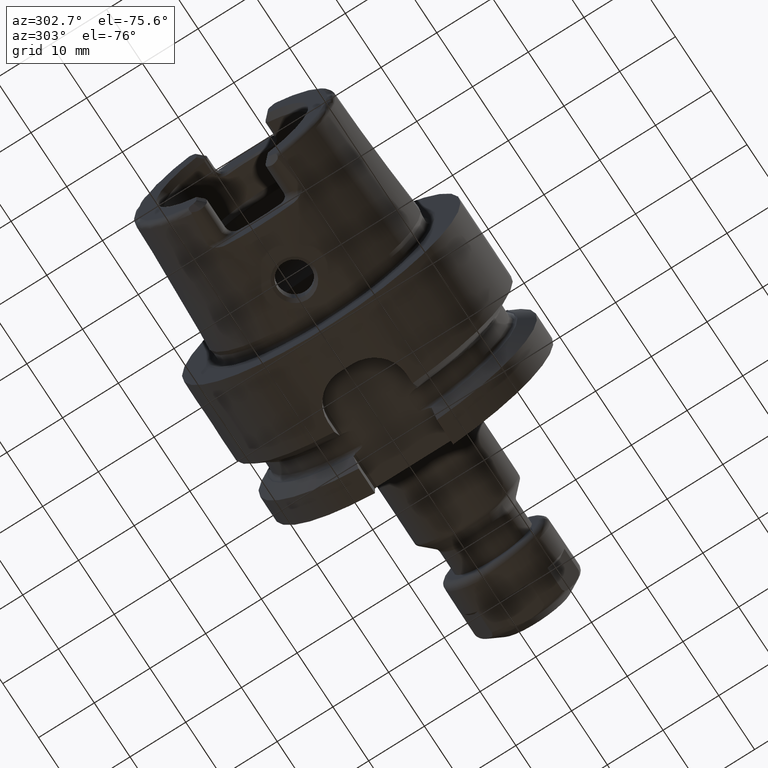
[diagram: clean part render]
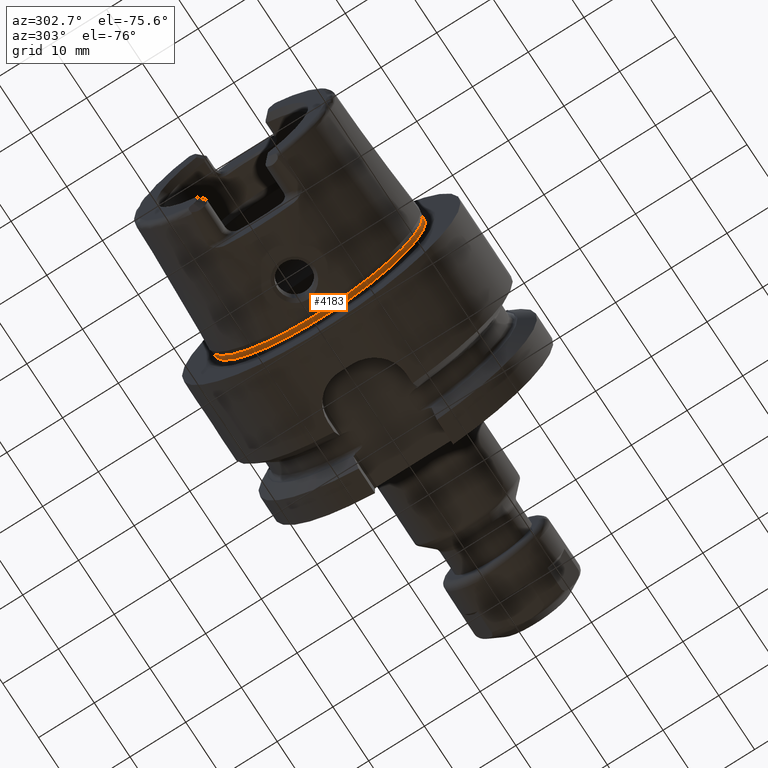
[diagram: same view with one face highlighted and labeled with its STEP entity id]
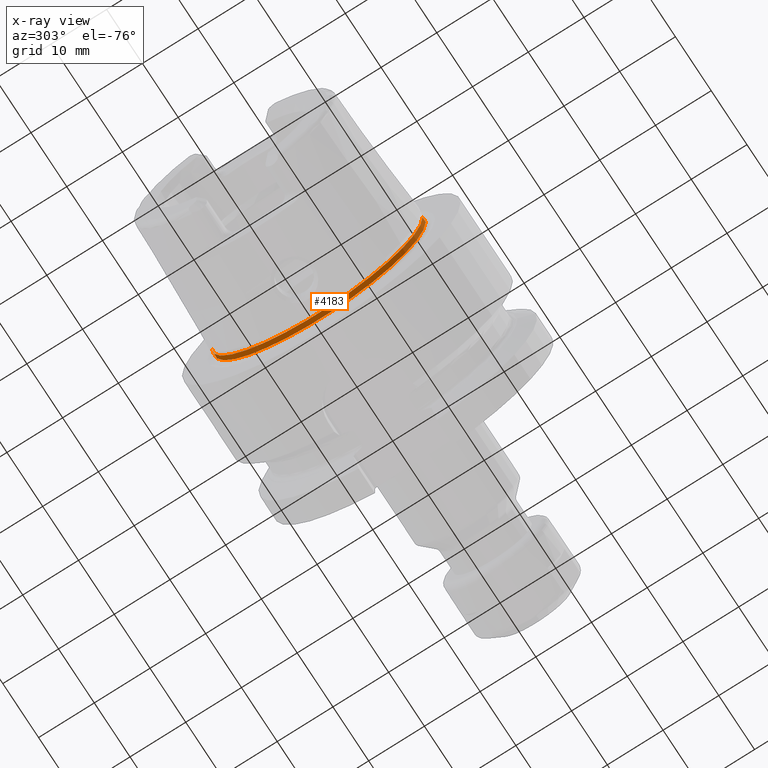
[diagram: x-ray of the same camera — body ghosted, the highlighted face saturated]
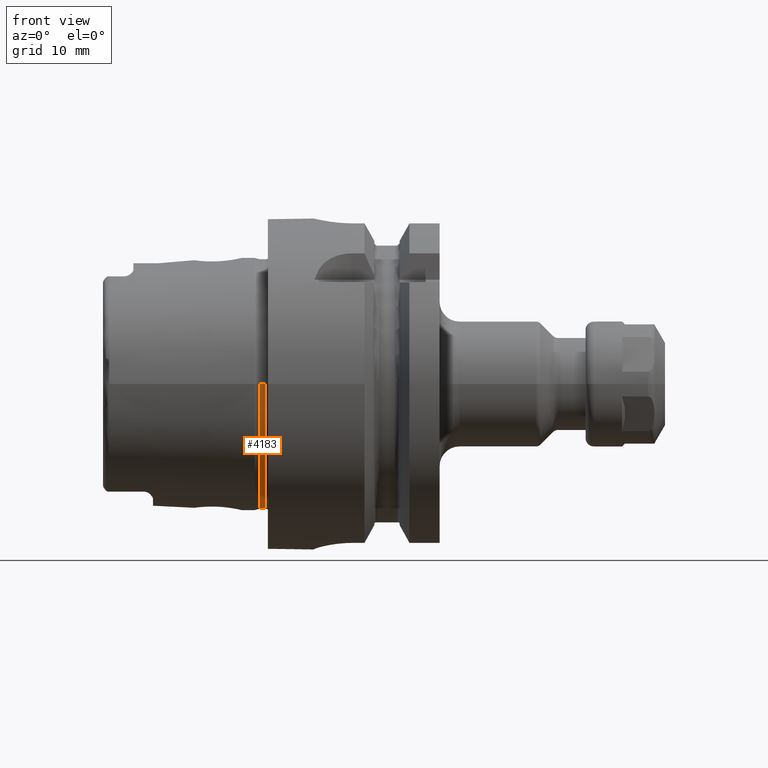
[diagram: same view with one face highlighted and labeled with its STEP entity id]
A machine part, auxiliary view. The second image highlights one B-rep face of the part: STEP entity #4183.
The next image is the same camera in x-ray: the body ghosted, the highlighted face saturated — about 0% of this face is hidden behind the body in this view.
A second angle (front view) of the same face is appended — the face is thin or edge-on in the first view.
In plain terms, the highlighted cylindrical surface (partial cylindrical patch) has radius 18.9548 mm, axis along (-1, 0, 0).
Its self-contained STEP definition (entity closure, byte-faithful):
#816=CARTESIAN_POINT('',(-1.174598339934E0,0.E0,0.E0));
#817=DIRECTION('',(-1.E0,0.E0,0.E0));
#818=DIRECTION('',(0.E0,1.E0,0.E0));
#819=AXIS2_PLACEMENT_3D('',#816,#817,#818);
#821=DIRECTION('',(-1.E0,0.E0,0.E0));
#822=VECTOR('',#821,8.724287094101E-1);
#823=CARTESIAN_POINT('',(-3.021696305237E-1,1.89548E1,0.E0));
#824=LINE('',#823,#822);
#825=DIRECTION('',(-1.E0,0.E0,0.E0));
#826=VECTOR('',#825,8.724287094101E-1);
#827=CARTESIAN_POINT('',(-3.021696305237E-1,-1.89548E1,0.E0));
#828=LINE('',#827,#826);
#829=CARTESIAN_POINT('',(-3.021696305237E-1,0.E0,0.E0));
#830=DIRECTION('',(-1.E0,0.E0,0.E0));
#831=DIRECTION('',(0.E0,1.E0,0.E0));
#832=AXIS2_PLACEMENT_3D('',#829,#830,#831);
#2795=CARTESIAN_POINT('',(-3.021696305237E-1,-1.89548E1,0.E0));
#2797=VERTEX_POINT('',#2795);
#2798=CARTESIAN_POINT('',(-1.174598339934E0,-1.89548E1,0.E0));
#2799=VERTEX_POINT('',#2798);
#2803=CARTESIAN_POINT('',(-3.021696305237E-1,1.89548E1,0.E0));
#2805=VERTEX_POINT('',#2803);
#2806=CARTESIAN_POINT('',(-1.174598339934E0,1.89548E1,0.E0));
#2807=VERTEX_POINT('',#2806);
#4169=CARTESIAN_POINT('',(1.E0,0.E0,0.E0));
#4170=DIRECTION('',(-1.E0,0.E0,0.E0));
#4171=DIRECTION('',(0.E0,-1.E0,0.E0));
#4172=AXIS2_PLACEMENT_3D('',#4169,#4170,#4171);
#4173=CYLINDRICAL_SURFACE('',#4172,1.89548E1);
#4175=ORIENTED_EDGE('',*,*,#4174,.T.);
#4176=ORIENTED_EDGE('',*,*,#4164,.T.);
#4178=ORIENTED_EDGE('',*,*,#4177,.F.);
#4180=ORIENTED_EDGE('',*,*,#4179,.F.);
#4181=EDGE_LOOP('',(#4175,#4176,#4178,#4180));
#4182=FACE_OUTER_BOUND('',#4181,.F.);
#4183=ADVANCED_FACE('',(#4182),#4173,.T.);
#820=CIRCLE('',#819,1.89548E1);
#833=CIRCLE('',#832,1.89548E1);
#4164=EDGE_CURVE('',#2807,#2799,#820,.T.);
#4174=EDGE_CURVE('',#2805,#2807,#824,.T.);
#4177=EDGE_CURVE('',#2797,#2799,#828,.T.);
#4179=EDGE_CURVE('',#2805,#2797,#833,.T.);